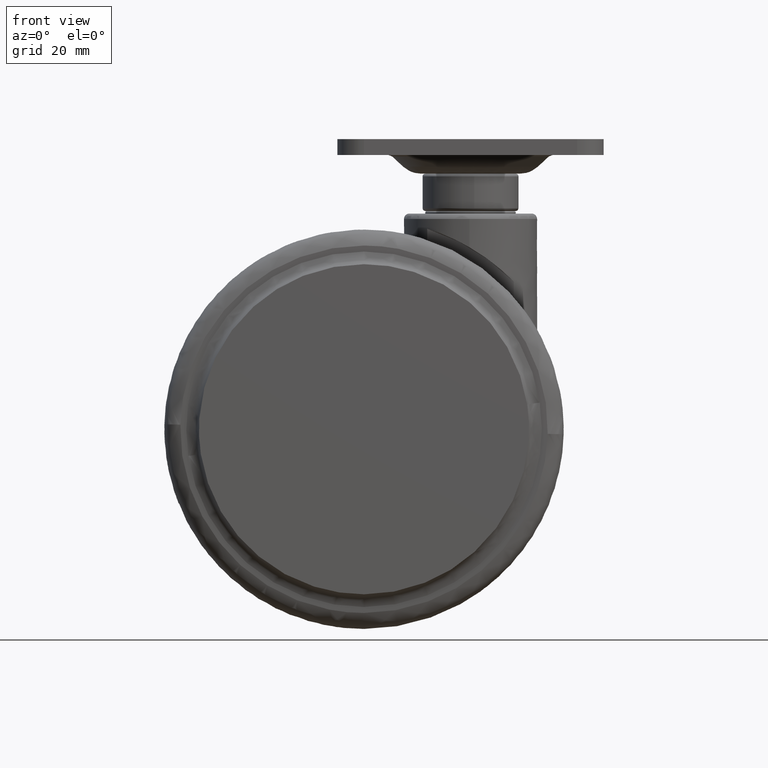
[diagram: clean part render]
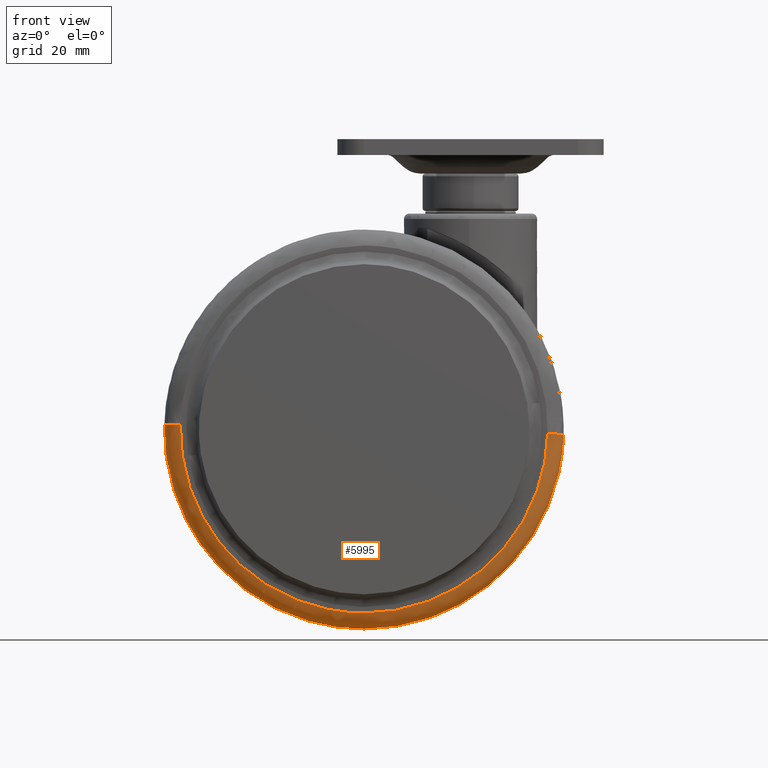
[diagram: same view with one face highlighted and labeled with its STEP entity id]
A machine part, front view. The second image highlights one B-rep face of the part: STEP entity #5995.
In plain terms, the highlighted face is a freeform B-spline surface patch.
Its self-contained STEP definition (entity closure, byte-faithful):
#5768=CARTESIAN_POINT('',(-47.201539319498409,-18.500000000453319,-66.313296160114490));
#5769=VERTEX_POINT('',#5768);
#5775=CARTESIAN_POINT('',(-57.488157098123722,-18.500000000889710,-39.557621420873971));
#5776=VERTEX_POINT('',#5775);
#5777=CARTESIAN_POINT('',(-57.488157098123722,-18.500000000889717,-39.557621420873978));
#5778=CARTESIAN_POINT('',(-57.499999999999993,-18.500000000884260,-40.028736295372838));
#5779=CARTESIAN_POINT('',(-57.499999999999993,-18.500000000878671,-40.500000000000007));
#5780=CARTESIAN_POINT('',(-57.500000000000000,-18.500000000701188,-55.460982631715808));
#5781=CARTESIAN_POINT('',(-47.201539319498430,-18.500000000453316,-66.313296160114476));
#5789=(BOUNDED_CURVE()B_SPLINE_CURVE(2,(#5777,#5778,#5779,#5780,#5781),.UNSPECIFIED.,.F.,.U.)B_SPLINE_CURVE_WITH_KNOTS((3,2,3),(0.745579891769803,0.750000000000000,0.871049524282304),.UNSPECIFIED.)CURVE()GEOMETRIC_REPRESENTATION_ITEM()RATIONAL_B_SPLINE_CURVE((0.989826157681567,0.994821521091816,1.0,0.858181660788475,0.853699661545442))REPRESENTATION_ITEM(''));
#5790=EDGE_CURVE('',#5776,#5769,#5789,.T.);
#5850=CARTESIAN_POINT('',(17.488157098123722,-18.500000000889720,-41.442378579126007));
#5851=VERTEX_POINT('',#5850);
#5867=CARTESIAN_POINT('',(-20.0,-18.500000000000000,-78.000000000000014));
#5868=VERTEX_POINT('',#5867);
#5869=CARTESIAN_POINT('',(-20.0,-18.500000000000000,-78.000000000000014));
#5870=CARTESIAN_POINT('',(16.569170356773498,-18.500000000444867,-78.000000000000014));
#5871=CARTESIAN_POINT('',(17.488157098123725,-18.500000000889724,-41.442378579126014));
#5879=(BOUNDED_CURVE()B_SPLINE_CURVE(2,(#5869,#5870,#5871),.UNSPECIFIED.,.F.,.U.)B_SPLINE_CURVE_WITH_KNOTS((3,3),(0.0,0.245579891769803),.UNSPECIFIED.)CURVE()GEOMETRIC_REPRESENTATION_ITEM()RATIONAL_B_SPLINE_CURVE((1.0,0.712285260094732,0.989826157681567))REPRESENTATION_ITEM(''));
#5880=EDGE_CURVE('',#5868,#5851,#5879,.T.);
#5882=CARTESIAN_POINT('',(-47.201539319498430,-18.500000000453316,-66.313296160114476));
#5883=CARTESIAN_POINT('',(-36.111271823560458,-18.500000000186382,-78.000000000000028));
#5884=CARTESIAN_POINT('',(-20.0,-18.500000000000000,-78.000000000000014));
#5892=(BOUNDED_CURVE()B_SPLINE_CURVE(2,(#5882,#5883,#5884),.UNSPECIFIED.,.F.,.U.)B_SPLINE_CURVE_WITH_KNOTS((3,3),(0.871049524282304,1.0),.UNSPECIFIED.)CURVE()GEOMETRIC_REPRESENTATION_ITEM()RATIONAL_B_SPLINE_CURVE((0.853699661545442,0.848925120398072,1.0))REPRESENTATION_ITEM(''));
#5893=EDGE_CURVE('',#5769,#5868,#5892,.T.);
#5901=CARTESIAN_POINT('',(-57.454517625395553,-18.290827446366620,-38.509962372860279));
#5902=CARTESIAN_POINT('',(-57.467611275237125,-18.290827446366620,-39.030832448986601));
#5903=CARTESIAN_POINT('',(-58.423053429088085,-18.290827446366624,-77.038663224369188));
#5904=CARTESIAN_POINT('',(-20.942195102359452,-18.290827446366620,-77.980858326728637));
#5905=CARTESIAN_POINT('',(16.538663224369170,-18.290827446366624,-78.923053429088100));
#5906=CARTESIAN_POINT('',(17.494105378219199,-18.290827446366620,-40.915222653743101));
#5907=CARTESIAN_POINT('',(17.507199028059848,-18.290827446366620,-40.394352577653493));
#5908=CARTESIAN_POINT('',(-57.694791479285612,-21.732007044478145,-38.497196115533420));
#5909=CARTESIAN_POINT('',(-57.707969125982807,-21.732007044478159,-39.021407616633304));
#5910=CARTESIAN_POINT('',(-58.669540520924805,-21.732007044478159,-77.273061795903786));
#5911=CARTESIAN_POINT('',(-20.948239362510520,-21.732007044478156,-78.221301158414278));
#5912=CARTESIAN_POINT('',(16.773061795903775,-21.732007044478159,-79.169540520924826));
#5913=CARTESIAN_POINT('',(17.734633190844832,-21.732007044478145,-40.917886341692160));
#5914=CARTESIAN_POINT('',(17.747810837541092,-21.732007044478159,-40.393674840629217));
#5915=CARTESIAN_POINT('',(-54.257026516612591,-21.492777051649842,-38.679851828721496));
#5916=CARTESIAN_POINT('',(-54.269002361938057,-21.492777051649846,-39.156255241202523));
#5917=CARTESIAN_POINT('',(-55.142878446177640,-21.492777051649842,-73.919358579860301));
#5918=CARTESIAN_POINT('',(-20.861759933158655,-21.492777051649842,-74.781118513018981));
#5919=CARTESIAN_POINT('',(13.419358579860310,-21.492777051649842,-75.642878446177633));
#5920=CARTESIAN_POINT('',(14.293234664099014,-21.492777051649849,-40.879775107554202));
#5921=CARTESIAN_POINT('',(14.305210509423636,-21.492777051649849,-40.403371695106763));
#5929=(BOUNDED_SURFACE()B_SPLINE_SURFACE(2,2,((#5901,#5908,#5915),(#5902,#5909,#5916),(#5903,#5910,#5917),(#5904,#5911,#5918),(#5905,#5912,#5919),(#5906,#5913,#5920),(#5907,#5914,#5921)),.UNSPECIFIED.,.F.,.F.,.U.)B_SPLINE_SURFACE_WITH_KNOTS((3,1,2,1,3),(3,3),(0.0,1.242398750794155,63.362336286050713,125.482273821307300,126.724672572012300),(0.0,5.468181419056302),.UNSPECIFIED.)GEOMETRIC_REPRESENTATION_ITEM()RATIONAL_B_SPLINE_SURFACE(((0.921564716011459,0.606435493452803,0.926697837807203),(0.916228828699132,0.602924213779180,0.921332229565909),(0.644098575789570,0.423848950436964,0.647686209279166),(0.910892941386805,0.599412934105556,0.915966621324616),(0.644098575789570,0.423848950436964,0.647686209279166),(0.916228828698749,0.602924213778928,0.921332229565524),(0.921564716010693,0.606435493452299,0.926697837806433)))REPRESENTATION_ITEM('')SURFACE());
#5930=ORIENTED_EDGE('',*,*,#5790,.T.);
#5931=ORIENTED_EDGE('',*,*,#5893,.T.);
#5932=ORIENTED_EDGE('',*,*,#5880,.T.);
#5933=CARTESIAN_POINT('',(14.489104532141569,-21.500000000000000,-41.366988292911337));
#5934=VERTEX_POINT('',#5933);
#5935=CARTESIAN_POINT('',(17.488157098123725,-18.500000000889727,-41.442378579126022));
#5936=CARTESIAN_POINT('',(17.488157097233422,-21.499999998129955,-41.442378579137838));
#5937=CARTESIAN_POINT('',(14.489104532141573,-21.499999999999996,-41.366988292911344));
#5945=(BOUNDED_CURVE()B_SPLINE_CURVE(2,(#5935,#5936,#5937),.UNSPECIFIED.,.F.,.U.)B_SPLINE_CURVE_WITH_KNOTS((3,3),(-1.723441281679419,-0.263586879572975),.UNSPECIFIED.)CURVE()GEOMETRIC_REPRESENTATION_ITEM()RATIONAL_B_SPLINE_CURVE((0.883897567031046,0.626638727406003,0.888510408831095))REPRESENTATION_ITEM(''));
#5946=EDGE_CURVE('',#5851,#5934,#5945,.T.);
#5947=ORIENTED_EDGE('',*,*,#5946,.T.);
#5948=CARTESIAN_POINT('',(-20.0,-21.500000000000000,-75.000000000000014));
#5949=VERTEX_POINT('',#5948);
#5950=CARTESIAN_POINT('',(-20.0,-21.500000000000000,-75.000000000000014));
#5951=CARTESIAN_POINT('',(13.643636729099597,-21.500000000000004,-75.000000000023533));
#5952=CARTESIAN_POINT('',(14.489104532141566,-21.500000000000004,-41.366988292911351));
#5960=(BOUNDED_CURVE()B_SPLINE_CURVE(2,(#5950,#5951,#5952),.UNSPECIFIED.,.F.,.U.)B_SPLINE_CURVE_WITH_KNOTS((3,3),(0.0,0.245579891769456),.UNSPECIFIED.)CURVE()GEOMETRIC_REPRESENTATION_ITEM()RATIONAL_B_SPLINE_CURVE((1.0,0.712285260095138,0.989826157680783))REPRESENTATION_ITEM(''));
#5961=EDGE_CURVE('',#5949,#5934,#5960,.T.);
#5962=ORIENTED_EDGE('',*,*,#5961,.F.);
#5963=CARTESIAN_POINT('',(-54.489104532141582,-21.500000000000000,-39.633011707088663));
#5964=VERTEX_POINT('',#5963);
#5965=CARTESIAN_POINT('',(-54.489104532141575,-21.500000000000004,-39.633011707088663));
#5966=CARTESIAN_POINT('',(-54.500000001858027,-21.500000000000004,-40.066437391662085));
#5967=CARTESIAN_POINT('',(-54.500000001846281,-21.500000000000000,-40.499999999953587));
#5968=CARTESIAN_POINT('',(-54.500000000911541,-21.499999999999996,-74.999999999977106));
#5969=CARTESIAN_POINT('',(-20.0,-21.500000000000000,-75.000000000000014));
#5977=(BOUNDED_CURVE()B_SPLINE_CURVE(2,(#5965,#5966,#5967,#5968,#5969),.UNSPECIFIED.,.F.,.U.)B_SPLINE_CURVE_WITH_KNOTS((3,2,3),(0.745579891769456,0.750000000000000,1.0),.UNSPECIFIED.)CURVE()GEOMETRIC_REPRESENTATION_ITEM()RATIONAL_B_SPLINE_CURVE((0.989826157680783,0.994821521091409,1.0,0.707106781186548,1.0))REPRESENTATION_ITEM(''));
#5978=EDGE_CURVE('',#5964,#5949,#5977,.T.);
#5979=ORIENTED_EDGE('',*,*,#5978,.F.);
#5980=CARTESIAN_POINT('',(-57.488157098123722,-18.500000000889710,-39.557621420873971));
#5981=CARTESIAN_POINT('',(-57.488157097233433,-21.499999998129951,-39.557621420862176));
#5982=CARTESIAN_POINT('',(-54.489104532141589,-21.500000000000004,-39.633011707088663));
#5990=(BOUNDED_CURVE()B_SPLINE_CURVE(2,(#5980,#5981,#5982),.UNSPECIFIED.,.F.,.U.)B_SPLINE_CURVE_WITH_KNOTS((3,3),(-1.723441281679423,-0.263586879572977),.UNSPECIFIED.)CURVE()GEOMETRIC_REPRESENTATION_ITEM()RATIONAL_B_SPLINE_CURVE((0.883897567031047,0.626638727406003,0.888510408831094))REPRESENTATION_ITEM(''));
#5991=EDGE_CURVE('',#5776,#5964,#5990,.T.);
#5992=ORIENTED_EDGE('',*,*,#5991,.F.);
#5993=EDGE_LOOP('',(#5930,#5931,#5932,#5947,#5962,#5979,#5992));
#5994=FACE_OUTER_BOUND('',#5993,.T.);
#5995=ADVANCED_FACE('',(#5994),#5929,.T.);